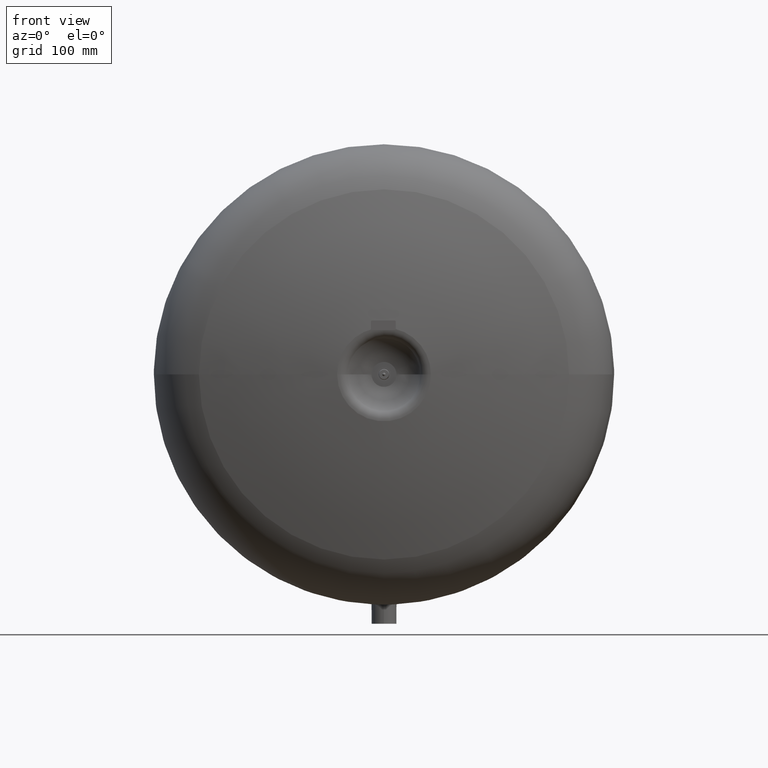
[diagram: clean part render]
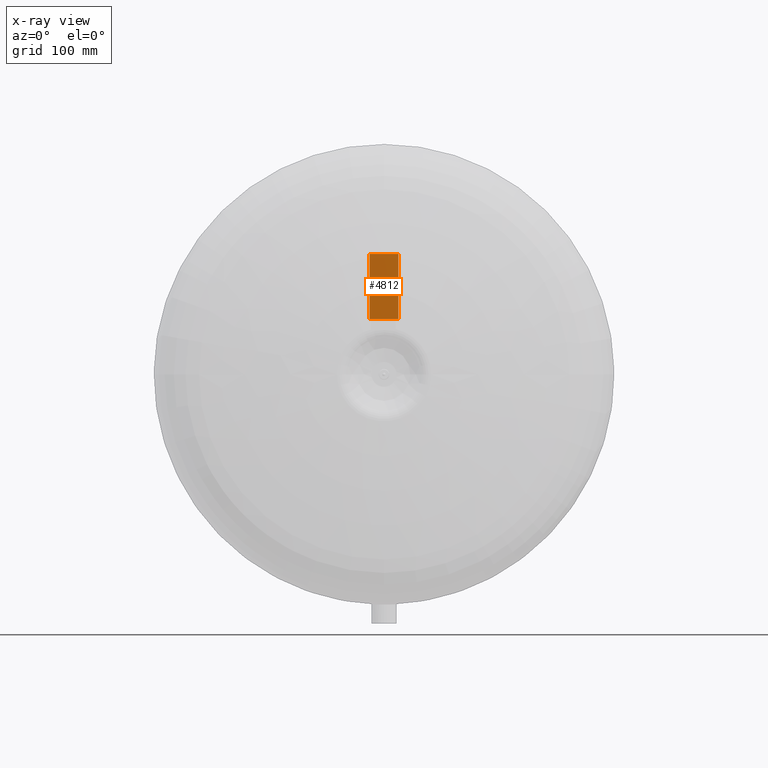
[diagram: x-ray — body ghosted, one internal face saturated and labeled with its STEP entity id]
A machine part, front view, then the same camera in x-ray: the body is ghosted and one INTERNAL B-rep face — a face not visible from any outside direction — is saturated and labeled: STEP entity #4812.
In plain terms, the highlighted cylindrical surface (partial cylindrical patch) has radius 640 mm, axis along (-1, 0, 0).
Its self-contained STEP definition (entity closure, byte-faithful):
#4406=CARTESIAN_POINT('',(15.000000000000009,113.01827850290545,385.52790834821639));
#4407=VERTEX_POINT('',#4406);
#4415=CARTESIAN_POINT('',(15.000000000000005,123.0,317.63619308701493));
#4416=VERTEX_POINT('',#4415);
#4417=CARTESIAN_POINT('',(14.999999999999886,-514.27328400204294,258.62126703225749));
#4418=DIRECTION('',(1.0,-1.883687E-016,-3.810865E-017));
#4419=DIRECTION('',(-1.921849E-016,-0.980143066413985,-0.198291627056187));
#4420=AXIS2_PLACEMENT_3D('',#4417,#4418,#4419);
#4421=CIRCLE('',#4420,639.9999999999975);
#4422=EDGE_CURVE('',#4416,#4407,#4421,.T.);
#4439=CARTESIAN_POINT('',(-14.999999999999995,123.0,317.63619308701493));
#4440=VERTEX_POINT('',#4439);
#4447=CARTESIAN_POINT('',(-14.999999999999995,113.01827850290545,385.52790834821639));
#4448=VERTEX_POINT('',#4447);
#4449=CARTESIAN_POINT('',(-15.000000000000115,-514.27328400204294,258.62126703225749));
#4450=DIRECTION('',(-1.0,1.883687E-016,3.810865E-017));
#4451=DIRECTION('',(-1.921849E-016,-0.980143066413985,-0.198291627056187));
#4452=AXIS2_PLACEMENT_3D('',#4449,#4450,#4451);
#4453=CIRCLE('',#4452,639.9999999999975);
#4454=EDGE_CURVE('',#4448,#4440,#4453,.T.);
#4613=CARTESIAN_POINT('',(15.000000000000005,123.0,317.63619308701493));
#4614=DIRECTION('',(-1.0,0.0,0.0));
#4615=VECTOR('',#4614,30.0);
#4616=LINE('',#4613,#4615);
#4617=EDGE_CURVE('',#4416,#4440,#4616,.T.);
#4790=CARTESIAN_POINT('',(15.000000000000009,113.01827850290545,385.52790834821639));
#4791=DIRECTION('',(-1.0,0.0,0.0));
#4792=VECTOR('',#4791,30.000000000000004);
#4793=LINE('',#4790,#4792);
#4794=EDGE_CURVE('',#4407,#4448,#4793,.T.);
#4801=CARTESIAN_POINT('',(14.999999999999886,-514.27328400204294,258.62126703225749));
#4802=DIRECTION('',(-1.0,1.836910E-016,6.123032E-017));
#4803=DIRECTION('',(-1.921849E-016,-0.980143066413985,-0.198291627056187));
#4804=AXIS2_PLACEMENT_3D('',#4801,#4802,#4803);
#4805=CYLINDRICAL_SURFACE('',#4804,639.99999999999761);
#4806=ORIENTED_EDGE('',*,*,#4454,.T.);
#4807=ORIENTED_EDGE('',*,*,#4617,.F.);
#4808=ORIENTED_EDGE('',*,*,#4422,.T.);
#4809=ORIENTED_EDGE('',*,*,#4794,.T.);
#4810=EDGE_LOOP('',(#4806,#4807,#4808,#4809));
#4811=FACE_OUTER_BOUND('',#4810,.T.);
#4812=ADVANCED_FACE('',(#4811),#4805,.F.);